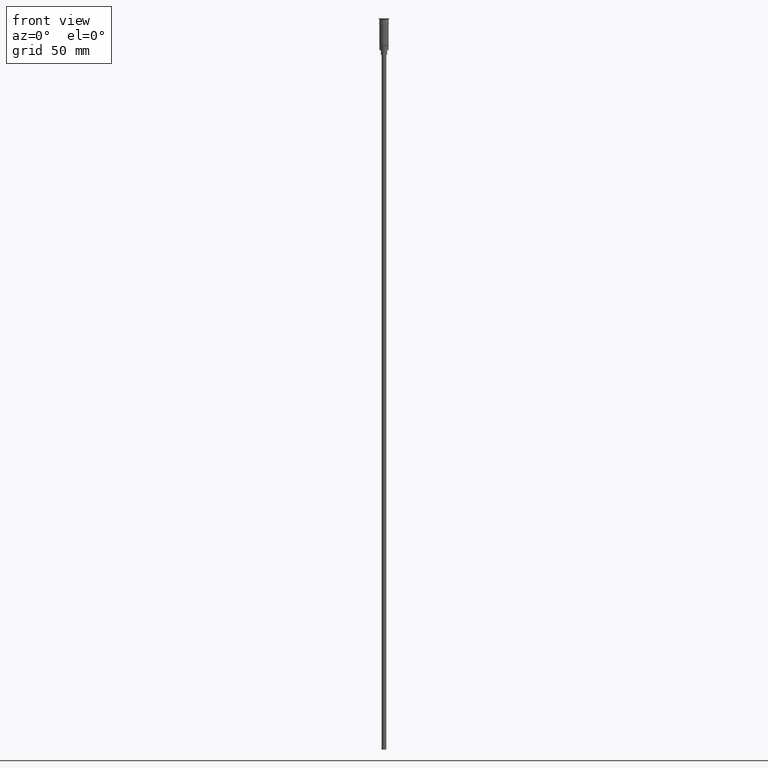
[diagram: clean part render]
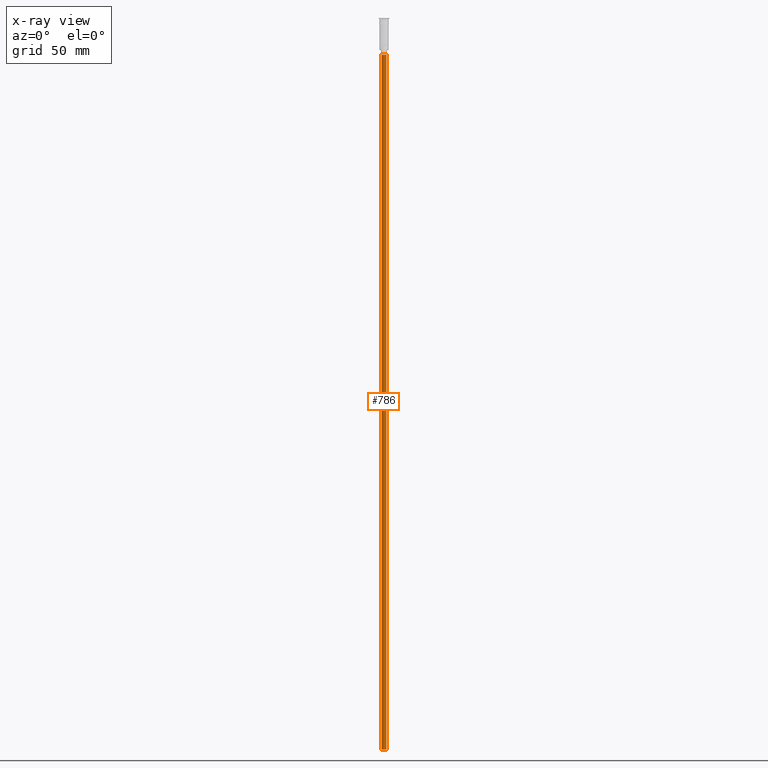
[diagram: x-ray — body ghosted, one internal face saturated and labeled with its STEP entity id]
A machine part, front view, then the same camera in x-ray: the body is ghosted and one INTERNAL B-rep face — a face not visible from any outside direction — is saturated and labeled: STEP entity #786.
In plain terms, the highlighted cylindrical surface (edge-blend (fillet) strip) has radius 1.5 mm, axis along (-0, -0, 1).
Its self-contained STEP definition (entity closure, byte-faithful):
#143 = DIRECTION ( 'NONE',  ( -0.000000000000000000, -0.000000000000000000, 1.000000000000000000 ) ) ;
#156 = CARTESIAN_POINT ( 'NONE',  ( 1.500000000000000222, 0.000000000000000000, -470.5000000000000568 ) ) ;
#169 = CYLINDRICAL_SURFACE ( 'NONE', #1113, 1.500000000000000222 ) ;
#220 = DIRECTION ( 'NONE',  ( -1.000000000000000000, 0.000000000000000000, 0.000000000000000000 ) ) ;
#231 = DIRECTION ( 'NONE',  ( 0.000000000000000000, 0.000000000000000000, -1.000000000000000000 ) ) ;
#240 = EDGE_CURVE ( 'NONE', #1219, #1171, #735, .T. ) ;
#256 = EDGE_CURVE ( 'NONE', #1463, #1171, #380, .T. ) ;
#262 = CARTESIAN_POINT ( 'NONE',  ( -1.500000000000000222, 1.836970198721030181E-16, -23.50000000000000000 ) ) ;
#305 = EDGE_LOOP ( 'NONE', ( #999, #826, #376, #618 ) ) ;
#346 = CARTESIAN_POINT ( 'NONE',  ( 0.000000000000000000, 0.000000000000000000, -470.5000000000000568 ) ) ;
#376 = ORIENTED_EDGE ( 'NONE', *, *, #568, .T. ) ;
#380 = CIRCLE ( 'NONE', #1389, 1.500000000000000222 ) ;
#453 = DIRECTION ( 'NONE',  ( -0.000000000000000000, -0.000000000000000000, 1.000000000000000000 ) ) ;
#457 = CIRCLE ( 'NONE', #1139, 1.500000000000000222 ) ;
#467 = CARTESIAN_POINT ( 'NONE',  ( 1.500000000000000222, 0.000000000000000000, -470.5000000000000568 ) ) ;
#568 = EDGE_CURVE ( 'NONE', #1539, #1463, #1584, .T. ) ;
#591 = EDGE_CURVE ( 'NONE', #1539, #1219, #457, .T. ) ;
#607 = VECTOR ( 'NONE', #453, 1000.000000000000000 ) ;
#618 = ORIENTED_EDGE ( 'NONE', *, *, #256, .T. ) ;
#626 = CARTESIAN_POINT ( 'NONE',  ( 0.000000000000000000, 0.000000000000000000, -23.50000000000000000 ) ) ;
#671 = FACE_OUTER_BOUND ( 'NONE', #305, .T. ) ;
#735 = LINE ( 'NONE', #1528, #1518 ) ;
#779 = CARTESIAN_POINT ( 'NONE',  ( 0.000000000000000000, 0.000000000000000000, -470.5000000000000568 ) ) ;
#786 = ADVANCED_FACE ( 'NONE', ( #671 ), #169, .T. ) ;
#826 = ORIENTED_EDGE ( 'NONE', *, *, #591, .F. ) ;
#902 = CARTESIAN_POINT ( 'NONE',  ( -1.500000000000000222, 1.836970198721030181E-16, -470.5000000000000568 ) ) ;
#920 = DIRECTION ( 'NONE',  ( -0.000000000000000000, -0.000000000000000000, 1.000000000000000000 ) ) ;
#961 = CARTESIAN_POINT ( 'NONE',  ( 1.500000000000000222, 0.000000000000000000, -23.50000000000000000 ) ) ;
#993 = DIRECTION ( 'NONE',  ( 0.000000000000000000, 0.000000000000000000, -1.000000000000000000 ) ) ;
#999 = ORIENTED_EDGE ( 'NONE', *, *, #240, .F. ) ;
#1113 = AXIS2_PLACEMENT_3D ( 'NONE', #779, #920, #1411 ) ;
#1139 = AXIS2_PLACEMENT_3D ( 'NONE', #346, #231, #220 ) ;
#1171 = VERTEX_POINT ( 'NONE', #262 ) ;
#1219 = VERTEX_POINT ( 'NONE', #902 ) ;
#1263 = DIRECTION ( 'NONE',  ( -1.000000000000000000, 0.000000000000000000, 0.000000000000000000 ) ) ;
#1389 = AXIS2_PLACEMENT_3D ( 'NONE', #626, #993, #1263 ) ;
#1411 = DIRECTION ( 'NONE',  ( 1.000000000000000000, 0.000000000000000000, 0.000000000000000000 ) ) ;
#1463 = VERTEX_POINT ( 'NONE', #961 ) ;
#1518 = VECTOR ( 'NONE', #143, 1000.000000000000000 ) ;
#1528 = CARTESIAN_POINT ( 'NONE',  ( -1.500000000000000222, 1.836970198721030181E-16, -470.5000000000000568 ) ) ;
#1539 = VERTEX_POINT ( 'NONE', #156 ) ;
#1584 = LINE ( 'NONE', #467, #607 ) ;